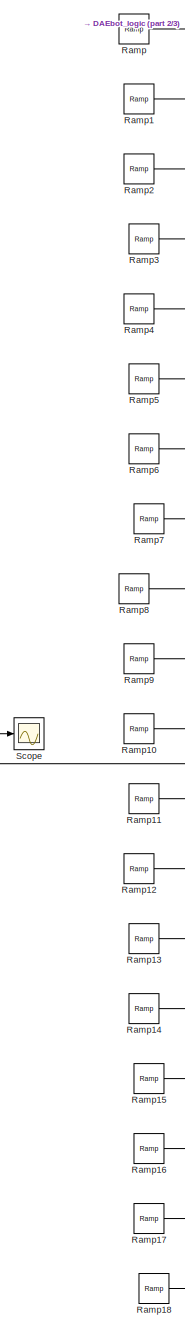
[diagram: root canvas - part 1/3, left side, full height]
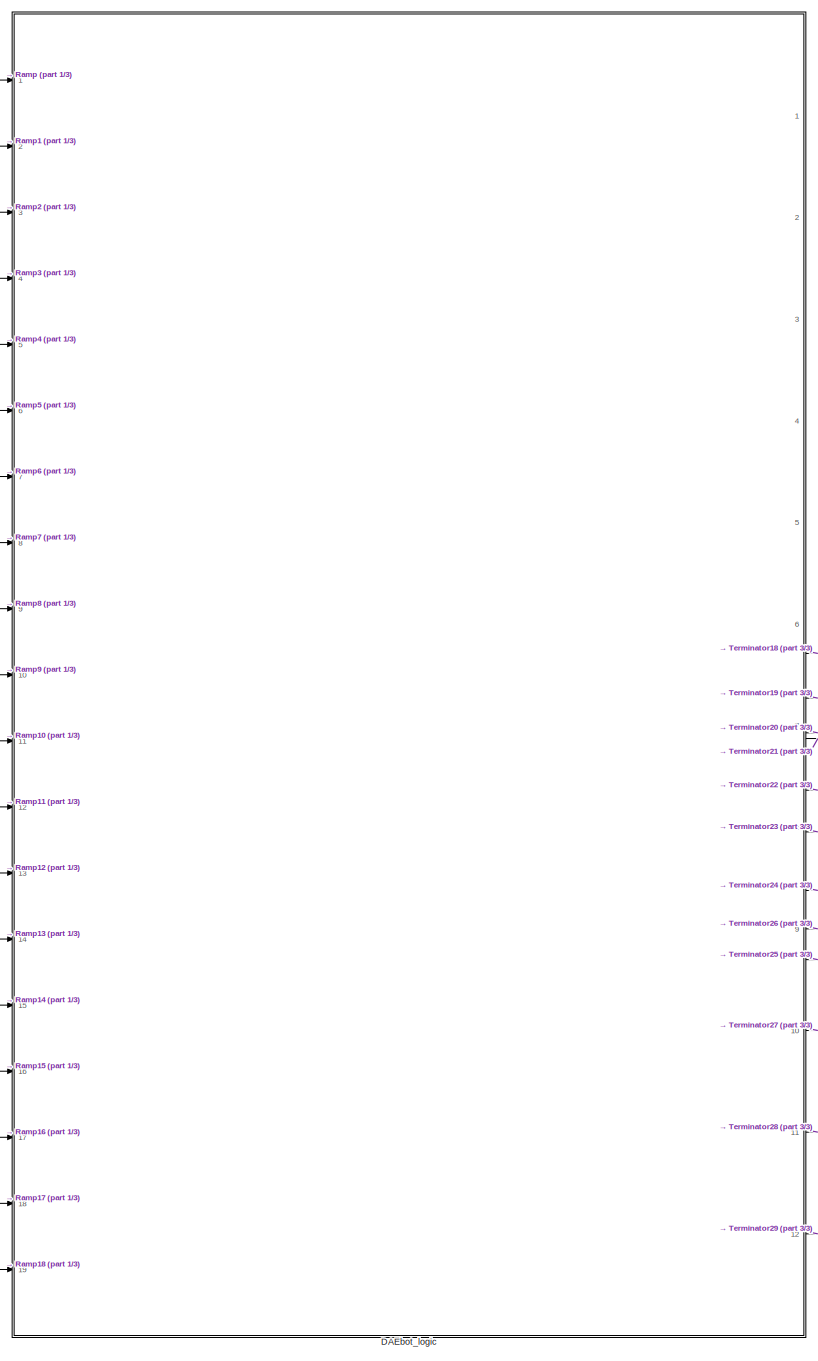
[diagram: root canvas - part 2/3, center side, full height]
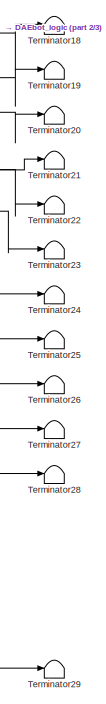
[diagram: root canvas - part 3/3, bottom right region]
MODEL slx_5dc13045e8a1
KIND model
CONFIG AbsTol = auto
CONFIG EnableMultiTasking = on
CONFIG FixedStep = auto
CONFIG MaxStep = auto
CONFIG MinStep = auto
CONFIG RelTol = 1e-3
CONFIG SampleTimeConstraint = Unconstrained
CONFIG Solver = FixedStepDiscrete
CONFIG SolverName = FixedStepDiscrete
CONFIG StartTime = 0.0
CONFIG StopTime = inf
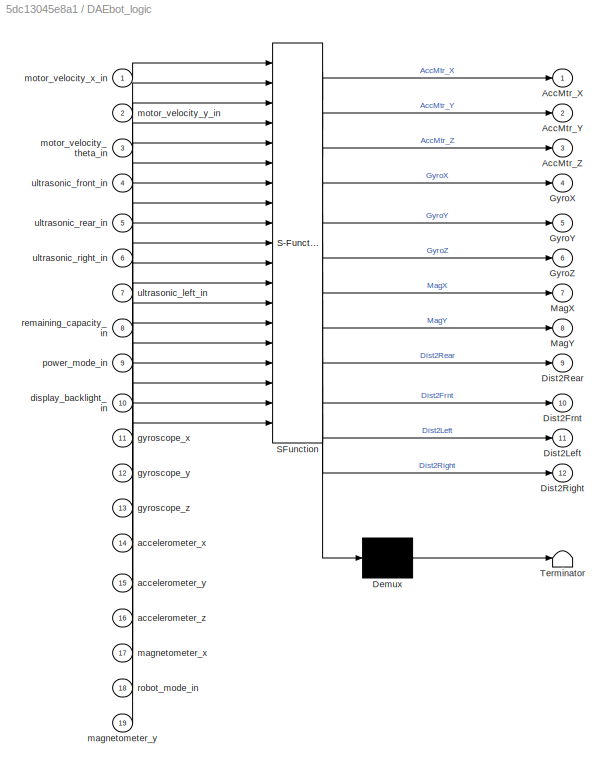
BLOCK [SubSystem] DAEbot_logic
  ErrorFcn = Stateflow.Translate.translate
  PermitHierarchicalResolution = ExplicitOnly
  Ports = [19, 12]
  RequestExecContextInheritance = off
  SFBlockType = Chart
  TreatAsAtomicUnit = on
BLOCK [Demux] DAEbot_logic/ Demux 
  Outputs = 1
  Ports = [1, 1]
BLOCK [S-Function] DAEbot_logic/ SFunction 
  EnableBusSupport = on
  FunctionName = sf_sfun
  Parameters = Mag_Thresh,Mode,SafeAtSide_Thresh,SafeInFrnt_Thresh,UnInit
  PortCounts = [19 13]
  Ports = [19, 13]
  SFcnIsStateOwnerBlock = off
  SFunctionDeploymentMode = off
  Tag = Stateflow S-Function DAEbot_WIP 3
BLOCK [Terminator] DAEbot_logic/ Terminator 
BLOCK [Outport] DAEbot_logic/AccMtr_X
  IconDisplay = Port number
BLOCK [Outport] DAEbot_logic/AccMtr_Y
  IconDisplay = Port number
  Port = 2
BLOCK [Outport] DAEbot_logic/AccMtr_Z
  IconDisplay = Port number
  Port = 3
BLOCK [Outport] DAEbot_logic/Dist2Frnt
  IconDisplay = Port number
  Port = 10
BLOCK [Outport] DAEbot_logic/Dist2Left
  IconDisplay = Port number
  Port = 11
BLOCK [Outport] DAEbot_logic/Dist2Rear
  IconDisplay = Port number
  Port = 9
BLOCK [Outport] DAEbot_logic/Dist2Right
  IconDisplay = Port number
  Port = 12
BLOCK [Outport] DAEbot_logic/GyroX
  IconDisplay = Port number
  Port = 4
BLOCK [Outport] DAEbot_logic/GyroY
  IconDisplay = Port number
  Port = 5
BLOCK [Outport] DAEbot_logic/GyroZ
  IconDisplay = Port number
  Port = 6
BLOCK [Outport] DAEbot_logic/MagX
  IconDisplay = Port number
  Port = 7
BLOCK [Outport] DAEbot_logic/MagY
  IconDisplay = Port number
  Port = 8
BLOCK [Inport] DAEbot_logic/accelerometer_x
  IconDisplay = Port number
  Port = 14
BLOCK [Inport] DAEbot_logic/accelerometer_y
  IconDisplay = Port number
  Port = 15
BLOCK [Inport] DAEbot_logic/accelerometer_z
  IconDisplay = Port number
  Port = 16
BLOCK [Inport] DAEbot_logic/display_backlight_in
  IconDisplay = Port number
  Port = 10
BLOCK [Inport] DAEbot_logic/gyroscope_x
  IconDisplay = Port number
  Port = 11
BLOCK [Inport] DAEbot_logic/gyroscope_y
  IconDisplay = Port number
  Port = 12
BLOCK [Inport] DAEbot_logic/gyroscope_z
  IconDisplay = Port number
  Port = 13
BLOCK [Inport] DAEbot_logic/magnetometer_x
  IconDisplay = Port number
  Port = 17
BLOCK [Inport] DAEbot_logic/magnetometer_y
  IconDisplay = Port number
  Port = 19
BLOCK [Inport] DAEbot_logic/motor_velocity_theta_in
  IconDisplay = Port number
  Port = 3
BLOCK [Inport] DAEbot_logic/motor_velocity_x_in
  IconDisplay = Port number
BLOCK [Inport] DAEbot_logic/motor_velocity_y_in
  IconDisplay = Port number
  Port = 2
BLOCK [Inport] DAEbot_logic/power_mode_in
  IconDisplay = Port number
  Port = 9
BLOCK [Inport] DAEbot_logic/remaining_capacity_in
  IconDisplay = Port number
  Port = 8
BLOCK [Inport] DAEbot_logic/robot_mode_in
  IconDisplay = Port number
  Port = 18
BLOCK [Inport] DAEbot_logic/ultrasonic_front_in
  IconDisplay = Port number
  Port = 4
BLOCK [Inport] DAEbot_logic/ultrasonic_left_in
  IconDisplay = Port number
  Port = 7
BLOCK [Inport] DAEbot_logic/ultrasonic_rear_in
  IconDisplay = Port number
  Port = 5
BLOCK [Inport] DAEbot_logic/ultrasonic_right_in
  IconDisplay = Port number
  Port = 6
BLOCK [Reference] Ramp  REF=simulink/Sources/Ramp
  Ports = [0, 1]
  SourceBlock = simulink/Sources/Ramp
  SourceProductBaseCode = SL
  SourceProductName = Simulink
  SourceType = Ramp
BLOCK [Reference] Ramp1  REF=simulink/Sources/Ramp
  Ports = [0, 1]
  SourceBlock = simulink/Sources/Ramp
  SourceProductBaseCode = SL
  SourceProductName = Simulink
  SourceType = Ramp
BLOCK [Reference] Ramp10  REF=simulink/Sources/Ramp
  Ports = [0, 1]
  SourceBlock = simulink/Sources/Ramp
  SourceProductBaseCode = SL
  SourceProductName = Simulink
  SourceType = Ramp
BLOCK [Reference] Ramp11  REF=simulink/Sources/Ramp
  Ports = [0, 1]
  SourceBlock = simulink/Sources/Ramp
  SourceProductBaseCode = SL
  SourceProductName = Simulink
  SourceType = Ramp
BLOCK [Reference] Ramp12  REF=simulink/Sources/Ramp
  Ports = [0, 1]
  SourceBlock = simulink/Sources/Ramp
  SourceProductBaseCode = SL
  SourceProductName = Simulink
  SourceType = Ramp
BLOCK [Reference] Ramp13  REF=simulink/Sources/Ramp
  Ports = [0, 1]
  SourceBlock = simulink/Sources/Ramp
  SourceProductBaseCode = SL
  SourceProductName = Simulink
  SourceType = Ramp
BLOCK [Reference] Ramp14  REF=simulink/Sources/Ramp
  Ports = [0, 1]
  SourceBlock = simulink/Sources/Ramp
  SourceProductBaseCode = SL
  SourceProductName = Simulink
  SourceType = Ramp
BLOCK [Reference] Ramp15  REF=simulink/Sources/Ramp
  Ports = [0, 1]
  SourceBlock = simulink/Sources/Ramp
  SourceProductBaseCode = SL
  SourceProductName = Simulink
  SourceType = Ramp
BLOCK [Reference] Ramp16  REF=simulink/Sources/Ramp
  Ports = [0, 1]
  SourceBlock = simulink/Sources/Ramp
  SourceProductBaseCode = SL
  SourceProductName = Simulink
  SourceType = Ramp
BLOCK [Reference] Ramp17  REF=simulink/Sources/Ramp
  Ports = [0, 1]
  SourceBlock = simulink/Sources/Ramp
  SourceProductBaseCode = SL
  SourceProductName = Simulink
  SourceType = Ramp
BLOCK [Reference] Ramp18  REF=simulink/Sources/Ramp
  Ports = [0, 1]
  SourceBlock = simulink/Sources/Ramp
  SourceProductBaseCode = SL
  SourceProductName = Simulink
  SourceType = Ramp
BLOCK [Reference] Ramp2  REF=simulink/Sources/Ramp
  Ports = [0, 1]
  SourceBlock = simulink/Sources/Ramp
  SourceProductBaseCode = SL
  SourceProductName = Simulink
  SourceType = Ramp
BLOCK [Reference] Ramp3  REF=simulink/Sources/Ramp
  Ports = [0, 1]
  SourceBlock = simulink/Sources/Ramp
  SourceProductBaseCode = SL
  SourceProductName = Simulink
  SourceType = Ramp
BLOCK [Reference] Ramp4  REF=simulink/Sources/Ramp
  Ports = [0, 1]
  SourceBlock = simulink/Sources/Ramp
  SourceProductBaseCode = SL
  SourceProductName = Simulink
  SourceType = Ramp
BLOCK [Reference] Ramp5  REF=simulink/Sources/Ramp
  Ports = [0, 1]
  SourceBlock = simulink/Sources/Ramp
  SourceProductBaseCode = SL
  SourceProductName = Simulink
  SourceType = Ramp
BLOCK [Reference] Ramp6  REF=simulink/Sources/Ramp
  Ports = [0, 1]
  SourceBlock = simulink/Sources/Ramp
  SourceProductBaseCode = SL
  SourceProductName = Simulink
  SourceType = Ramp
BLOCK [Reference] Ramp7  REF=simulink/Sources/Ramp
  Ports = [0, 1]
  SourceBlock = simulink/Sources/Ramp
  SourceProductBaseCode = SL
  SourceProductName = Simulink
  SourceType = Ramp
BLOCK [Reference] Ramp8  REF=simulink/Sources/Ramp
  Ports = [0, 1]
  SourceBlock = simulink/Sources/Ramp
  SourceProductBaseCode = SL
  SourceProductName = Simulink
  SourceType = Ramp
BLOCK [Reference] Ramp9  REF=simulink/Sources/Ramp
  Ports = [0, 1]
  SourceBlock = simulink/Sources/Ramp
  SourceProductBaseCode = SL
  SourceProductName = Simulink
  SourceType = Ramp
BLOCK [Scope] Scope
  Floating = off
  NumInputPorts = 1
  Ports = [1]
  ScopeSpecificationString = Simulink.scopes.TimeScopeBlockCfg('CurrentConfiguration', extmgr.ConfigurationSet(extmgr.Configuration('Core','General UI',true),extmgr.Configuration('Core','Source UI',true),extmgr.Configuration('Sources','WiredSimulink',true),extmgr.Configuration('Visuals','Time Domain',true,'SerializedDisplays',{struct('MinYLimReal','-0.025','MaxYLimReal','0.225','YLabelReal','','MinYLimMag','0.00000','MaxYLimM...<+1347ch>
BLOCK [Terminator] Terminator18
BLOCK [Terminator] Terminator19
BLOCK [Terminator] Terminator20
BLOCK [Terminator] Terminator21
BLOCK [Terminator] Terminator22
BLOCK [Terminator] Terminator23
BLOCK [Terminator] Terminator24
BLOCK [Terminator] Terminator25
BLOCK [Terminator] Terminator26
BLOCK [Terminator] Terminator27
BLOCK [Terminator] Terminator28
BLOCK [Terminator] Terminator29
LINE DAEbot_logic:1 -> Terminator18:1
LINE DAEbot_logic:10 -> Terminator27:1
LINE DAEbot_logic:11 -> Terminator28:1
LINE DAEbot_logic:12 -> Terminator29:1
LINE DAEbot_logic:2 -> Terminator19:1
LINE DAEbot_logic:3 -> Terminator20:1
LINE DAEbot_logic:4 -> Terminator21:1
LINE DAEbot_logic:5 -> Terminator22:1
LINE DAEbot_logic:6 -> Terminator23:1
LINE DAEbot_logic:7 -> Terminator24:1
LINE DAEbot_logic:8 -> Terminator25:1
LINE DAEbot_logic:9 -> Terminator26:1
NET Ramp10:1 -> DAEbot_logic:11, Scope:1
LINE Ramp11:1 -> DAEbot_logic:12
LINE Ramp12:1 -> DAEbot_logic:13
LINE Ramp13:1 -> DAEbot_logic:14
LINE Ramp14:1 -> DAEbot_logic:15
LINE Ramp15:1 -> DAEbot_logic:16
LINE Ramp16:1 -> DAEbot_logic:17
LINE Ramp17:1 -> DAEbot_logic:18
LINE Ramp18:1 -> DAEbot_logic:19
LINE Ramp1:1 -> DAEbot_logic:2
LINE Ramp2:1 -> DAEbot_logic:3
LINE Ramp3:1 -> DAEbot_logic:4
LINE Ramp4:1 -> DAEbot_logic:5
LINE Ramp5:1 -> DAEbot_logic:6
LINE Ramp6:1 -> DAEbot_logic:7
LINE Ramp7:1 -> DAEbot_logic:8
LINE Ramp8:1 -> DAEbot_logic:9
LINE Ramp9:1 -> DAEbot_logic:10
LINE Ramp:1 -> DAEbot_logic:1
note: NET lines group one-source signal fan-out (src -> all destinations, sorted); 1:1 wires keep LINE
CHART DAEbot_logic states=53 transitions=49
  STATE_LABEL 'Scanner\n'
  STATE_LABEL 'Motion_Detect'
  STATE_LABEL 'MotionSet\nen:\nBotInAct = 1;'
  STATE_LABEL 'MotionNtSet\nen:\nBotInAct = 0;'
  STATE_LABEL '[motor_velocity_x_in||motor_velocity_x_in||motor_velocity_x_in]'
  STATE_LABEL '[motor_velocity_x_in == 0&&motor_velocity_y_in==0&&motor_velocity_theta_in==0]'
  STATE_LABEL 'Accmtr'
  STATE_LABEL 'gyro_X'
  STATE_LABEL 'gyro_X_Set\nen:\nAccMtr_X =accelerometer_x;'
  STATE_LABEL 'gyro_X_Init\nen:\nAccMtr_X = UnInit;'
  STATE_LABEL '[ultrasonic_front_in ~=0]'
  STATE_LABEL '[ultrasonic_front_in == 0]'
  STATE_LABEL 'gyro_Y'
  STATE_LABEL 'gyro_Y_Init1\nen:\nAccMtr_Y =accelerometer_y;'
  STATE_LABEL 'gyro_Y_Init\nen:\nAccMtr_Y = UnInit;'
  STATE_LABEL '[ultrasonic_front_in ~=0]'
  STATE_LABEL '[ultrasonic_front_in == 0]'
  STATE_LABEL 'gyro_Z'
  STATE_LABEL 'gyro_Z_Init1\nen:\nAccMtr_Z =accelerometer_z;'
  STATE_LABEL 'gyro_Z_Init\nen:\nAccMtr_Z = UnInit;'
  STATE_LABEL '[ultrasonic_front_in ~=0]'
  STATE_LABEL '[ultrasonic_front_in == 0]'
  STATE_LABEL 'Ultrasonic'
  STATE_LABEL 'Frnt'
  STATE_LABEL 'Frnt_set\ndu:\nDist2Frnt =ultrasonic_front_in;'
  STATE_LABEL 'Frnt_Uninit\nen:\nDist2Frnt = UnInit;'
  STATE_LABEL '[BotInAct && ultrasonic_front_in ~=0]'
  STATE_LABEL '[ultrasonic_front_in == 0]'
  STATE_LABEL 'Back'
  STATE_LABEL 'Rear_Set\ndu:\nDist2Rear =ultrasonic_rear_in;'
  STATE_LABEL 'Rear_Uninit\nen:\nDist2Rear= UnInit;'
  STATE_LABEL '[BotInAct && ultrasonic_rear_in ~=0]'
  STATE_LABEL '[ultrasonic_rear_in == 0]'
  STATE_LABEL 'Left'
  STATE_LABEL 'Left_Set\ndu:\nDist2Left =ultrasonic_left_in;'
  STATE_LABEL 'Left_Uninit\nen:\nDist2Left = UnInit;'
  STATE_LABEL '[BotInAct && ultrasonic_left_in ~=0]'
  STATE_LABEL '[ultrasonic_left_in == 0]'
  STATE_LABEL 'Right'
  STATE_LABEL 'Right_Set\ndu:\nDist2Right =ultrasonic_right_in;'
